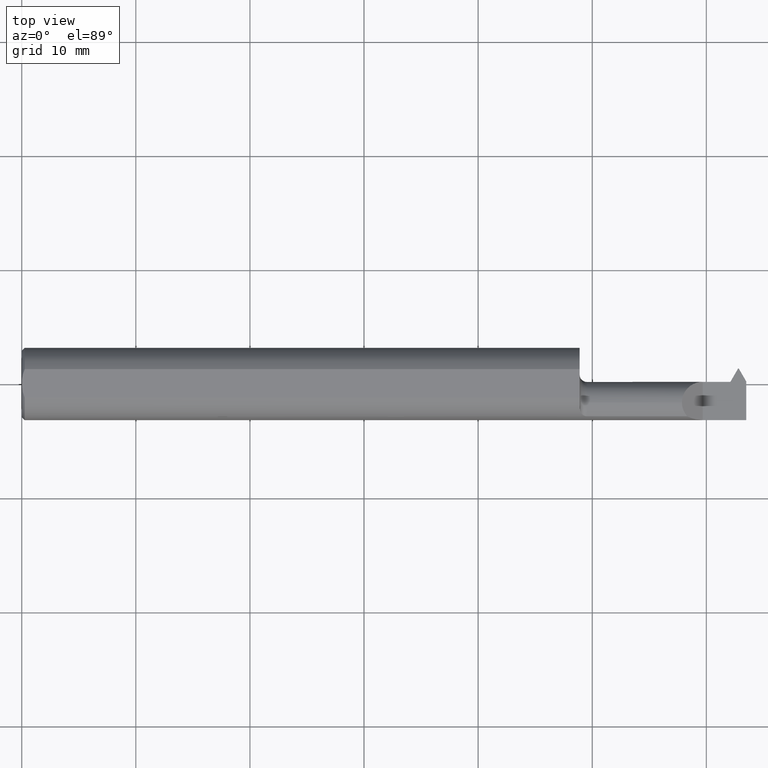
[diagram: clean part render]
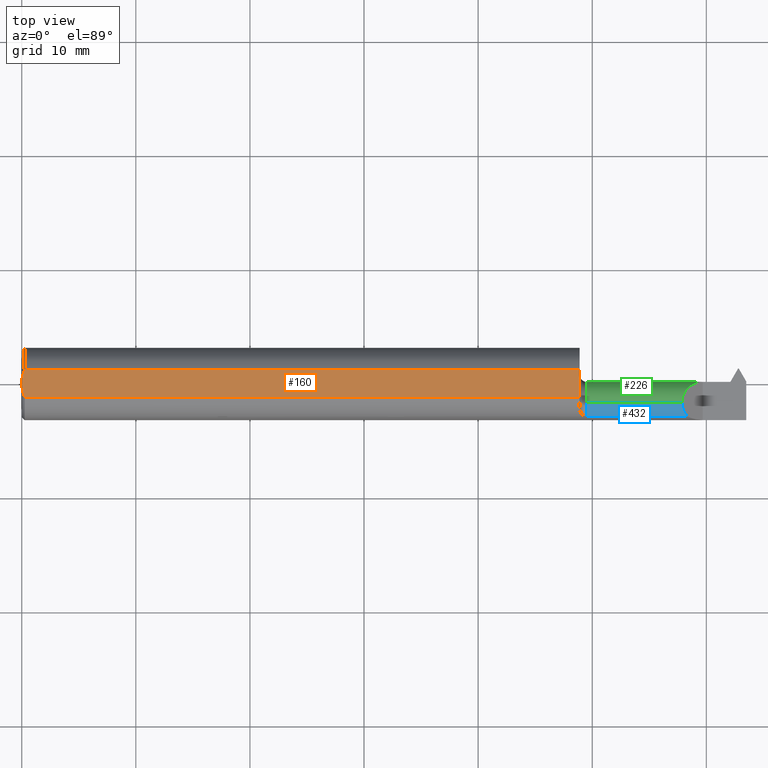
[diagram: same view with three faces highlighted in distinct colors, each labeled with its STEP entity id]
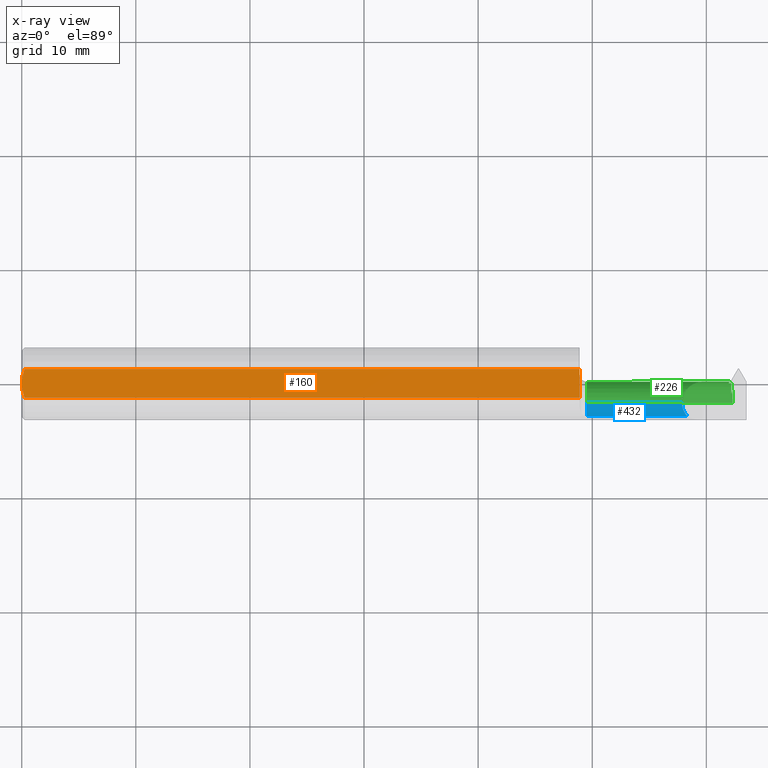
[diagram: x-ray of the same camera — body ghosted, the three highlighted faces saturated]
A machine part, top view with three faces highlighted in distinct colors.
The next image is the same camera in x-ray (body ghosted, the three faces saturated) — at least one of them is partly hidden behind the body in this view.
Their STEP definitions:

[orange] entity #160 — the highlighted planar face has unit normal (0, 0, 1).
#7 = DIRECTION ( 'NONE',  ( 1.000000000000000000, 0.000000000000000000, 0.000000000000000000 ) ) ;
#18 = CARTESIAN_POINT ( 'NONE',  ( 1.925000000000000044, 0.1248500000000000026, 0.1148499999999999521 ) ) ;
#30 = VERTEX_POINT ( 'NONE', #571 ) ;
#44 = ORIENTED_EDGE ( 'NONE', *, *, #622, .T. ) ;
#47 = CARTESIAN_POINT ( 'NONE',  ( -8.474402044719765530E-17, 0.01683325733139112365, 0.1148499999999999521 ) ) ;
#99 = VERTEX_POINT ( 'NONE', #720 ) ;
#101 = CARTESIAN_POINT ( 'NONE',  ( 0.004414493321357296045, -0.03313351293251454166, 0.1148499999999999660 ) ) ;
#104 = CARTESIAN_POINT ( 'NONE',  ( 0.000000000000000000, 0.000000000000000000, 0.1148499999999999521 ) ) ;
#120 = EDGE_CURVE ( 'NONE', #99, #30, #751, .T. ) ;
#121 = DIRECTION ( 'NONE',  ( -1.000000000000000000, -0.000000000000000000, -0.000000000000000000 ) ) ;
#158 = CARTESIAN_POINT ( 'NONE',  ( 1.925000000000000044, 0.04895916665957469188, 0.1148499999999999521 ) ) ;
#160 = ADVANCED_FACE ( 'NONE', ( #653 ), #657, .T. ) ;
#165 = ORIENTED_EDGE ( 'NONE', *, *, #386, .T. ) ;
#171 = CARTESIAN_POINT ( 'NONE',  ( -7.933430635897561254E-17, -0.008414813278457880172, 0.1148499999999999660 ) ) ;
#175 = DIRECTION ( 'NONE',  ( 1.000000000000000000, 0.000000000000000000, -0.000000000000000000 ) ) ;
#181 = VERTEX_POINT ( 'NONE', #321 ) ;
#200 = ORIENTED_EDGE ( 'NONE', *, *, #304, .F. ) ;
#219 = CARTESIAN_POINT ( 'NONE',  ( 0.000000000000000000, -0.04895916665957469188, 0.1148499999999999521 ) ) ;
#240 = CARTESIAN_POINT ( 'NONE',  ( 0.0009329797661891488150, -0.01671851415607274530, 0.1148499999999999244 ) ) ;
#260 = VERTEX_POINT ( 'NONE', #534 ) ;
#268 = AXIS2_PLACEMENT_3D ( 'NONE', #589, #448, #175 ) ;
#269 = VECTOR ( 'NONE', #7, 39.37007874015748143 ) ;
#275 = DIRECTION ( 'NONE',  ( 0.000000000000000000, 1.000000000000000000, 0.000000000000000000 ) ) ;
#304 = EDGE_CURVE ( 'NONE', #30, #181, #858, .T. ) ;
#321 = CARTESIAN_POINT ( 'NONE',  ( 0.01000000000000014939, 0.04895916665957469188, 0.1148499999999999521 ) ) ;
#325 = CARTESIAN_POINT ( 'NONE',  ( 0.000000000000000000, 0.04895916665957469188, 0.1148499999999999521 ) ) ;
#326 = CARTESIAN_POINT ( 'NONE',  ( 0.01000000000000014939, 0.04895916665957469188, 0.1148499999999999521 ) ) ;
#342 = VECTOR ( 'NONE', #121, 39.37007874015748143 ) ;
#386 = EDGE_CURVE ( 'NONE', #260, #561, #549, .T. ) ;
#446 = ORIENTED_EDGE ( 'NONE', *, *, #450, .T. ) ;
#448 = DIRECTION ( 'NONE',  ( 0.000000000000000000, 0.000000000000000000, 1.000000000000000000 ) ) ;
#450 = EDGE_CURVE ( 'NONE', #99, #260, #629, .T. ) ;
#510 = CARTESIAN_POINT ( 'NONE',  ( 0.01000000000000014939, -0.04895916665957469188, 0.1148499999999999521 ) ) ;
#534 = CARTESIAN_POINT ( 'NONE',  ( 1.925000000000000044, -0.04895916665957478209, 0.1148499999999999521 ) ) ;
#537 = LINE ( 'NONE', #325, #342 ) ;
#549 = LINE ( 'NONE', #18, #732 ) ;
#561 = VERTEX_POINT ( 'NONE', #158 ) ;
#571 = CARTESIAN_POINT ( 'NONE',  ( 0.000000000000000000, 0.000000000000000000, 0.1148499999999999521 ) ) ;
#589 = CARTESIAN_POINT ( 'NONE',  ( 2.752883550275615487, 0.1248500000000000026, 0.1148499999999999521 ) ) ;
#622 = EDGE_CURVE ( 'NONE', #561, #181, #537, .T. ) ;
#629 = LINE ( 'NONE', #219, #269 ) ;
#653 = FACE_OUTER_BOUND ( 'NONE', #782, .T. ) ;
#657 = PLANE ( 'NONE',  #268 ) ;
#671 = CARTESIAN_POINT ( 'NONE',  ( 0.000000000000000000, 0.000000000000000000, 0.1148499999999999521 ) ) ;
#707 = ORIENTED_EDGE ( 'NONE', *, *, #120, .F. ) ;
#720 = CARTESIAN_POINT ( 'NONE',  ( 0.01000000000000014939, -0.04895916665957469188, 0.1148499999999999521 ) ) ;
#732 = VECTOR ( 'NONE', #275, 39.37007874015748143 ) ;
#751 = B_SPLINE_CURVE_WITH_KNOTS ( 'NONE', 3,
 ( #510, #870, #101, #240, #171, #104 ),
 .UNSPECIFIED., .F., .F.,
 ( 4, 2, 4 ),
 ( 0.001059891666211653424, 0.001694300407100094883, 0.002328709147988536343 ),
 .UNSPECIFIED. ) ;
#782 = EDGE_LOOP ( 'NONE', ( #446, #165, #44, #200, #707 ) ) ;
#818 = CARTESIAN_POINT ( 'NONE',  ( 0.003881058084116530311, 0.03335534922718986356, 0.1148499999999999521 ) ) ;
#858 = B_SPLINE_CURVE_WITH_KNOTS ( 'NONE', 3,
 ( #671, #47, #818, #326 ),
 .UNSPECIFIED., .F., .F.,
 ( 4, 4 ),
 ( 0.002328709147988536343, 0.003597800360742826626 ),
 .UNSPECIFIED. ) ;
#870 = CARTESIAN_POINT ( 'NONE',  ( 0.006957100361671281381, -0.04119951620459590125, 0.1148499999999999521 ) ) ;

[blue] entity #432 — the highlighted cylindrical surface (edge-blend (fillet) strip) has radius 1.8288 mm, axis along (-1, -0, -0).
#9 = AXIS2_PLACEMENT_3D ( 'NONE', #254, #538, #811 ) ;
#13 = DIRECTION ( 'NONE',  ( 0.000000000000000000, 0.000000000000000000, 1.000000000000000000 ) ) ;
#17 =( BOUNDED_CURVE ( )  B_SPLINE_CURVE ( 3, ( #490, #336, #409, #62 ),
 .UNSPECIFIED., .F., .T. ) 
 B_SPLINE_CURVE_WITH_KNOTS ( ( 4, 4 ),
 ( 5.557415925277291002, 6.283185307179586232 ),
 .UNSPECIFIED. ) 
 CURVE ( )  GEOMETRIC_REPRESENTATION_ITEM ( )  RATIONAL_B_SPLINE_CURVE ( ( 1.000000000000000000, 0.9565844858609652279, 0.9565844858609652279, 1.000000000000000000 ) ) 
 REPRESENTATION_ITEM ( '' )  );
#62 = CARTESIAN_POINT ( 'NONE',  ( 2.277999999999999137, -0.06485000000000003262, 0.07200000000000005007 ) ) ;
#91 = CARTESIAN_POINT ( 'NONE',  ( 2.197229416990599926, -0.1126372012336159523, 0.05385520771715492788 ) ) ;
#93 = VECTOR ( 'NONE', #644, 39.37007874015748143 ) ;
#112 = VERTEX_POINT ( 'NONE', #649 ) ;
#138 = EDGE_CURVE ( 'NONE', #865, #112, #366, .T. ) ;
#152 = AXIS2_PLACEMENT_3D ( 'NONE', #692, #829, #13 ) ;
#155 = VERTEX_POINT ( 'NONE', #159 ) ;
#159 = CARTESIAN_POINT ( 'NONE',  ( 2.277999999999999137, -0.06485000000000003262, 0.07200000000000005007 ) ) ;
#254 = CARTESIAN_POINT ( 'NONE',  ( 1.949999999999999956, -0.06485000000000003262, 0.000000000000000000 ) ) ;
#282 = CARTESIAN_POINT ( 'NONE',  ( 1.925000000000000044, -0.06485000000000003262, 0.07200000000000005007 ) ) ;
#286 = EDGE_CURVE ( 'NONE', #865, #411, #468, .T. ) ;
#336 = CARTESIAN_POINT ( 'NONE',  ( 2.284322770422977822, -0.09931402208806684728, 0.06567722957702165631 ) ) ;
#362 = EDGE_LOOP ( 'NONE', ( #408, #398, #543, #650 ) ) ;
#366 = LINE ( 'NONE', #91, #93 ) ;
#398 = ORIENTED_EDGE ( 'NONE', *, *, #827, .T. ) ;
#408 = ORIENTED_EDGE ( 'NONE', *, *, #871, .T. ) ;
#409 = CARTESIAN_POINT ( 'NONE',  ( 2.277999999999999581, -0.08266199886030649313, 0.07200000000000005007 ) ) ;
#410 = CYLINDRICAL_SURFACE ( 'NONE', #152, 0.07200000000000005007 ) ;
#411 = VERTEX_POINT ( 'NONE', #624 ) ;
#424 = LINE ( 'NONE', #282, #691 ) ;
#432 = ADVANCED_FACE ( 'NONE', ( #832 ), #410, .T. ) ;
#468 = CIRCLE ( 'NONE', #9, 0.07200000000000005007 ) ;
#490 = CARTESIAN_POINT ( 'NONE',  ( 2.296144792282844627, -0.1126372012336159245, 0.05385520771715499033 ) ) ;
#538 = DIRECTION ( 'NONE',  ( -1.000000000000000000, -0.000000000000000000, -0.000000000000000000 ) ) ;
#543 = ORIENTED_EDGE ( 'NONE', *, *, #286, .F. ) ;
#624 = CARTESIAN_POINT ( 'NONE',  ( 1.949999999999999956, -0.06485000000000003262, 0.07200000000000005007 ) ) ;
#644 = DIRECTION ( 'NONE',  ( 1.000000000000000000, 0.000000000000000000, 0.000000000000000000 ) ) ;
#649 = CARTESIAN_POINT ( 'NONE',  ( 2.296144792282844627, -0.1126372012336159245, 0.05385520771715499033 ) ) ;
#650 = ORIENTED_EDGE ( 'NONE', *, *, #138, .T. ) ;
#691 = VECTOR ( 'NONE', #842, 39.37007874015748143 ) ;
#692 = CARTESIAN_POINT ( 'NONE',  ( 1.925000000000000044, -0.06485000000000003262, 0.000000000000000000 ) ) ;
#773 = CARTESIAN_POINT ( 'NONE',  ( 1.949999999999999956, -0.1126372012336159106, 0.05385520771715496258 ) ) ;
#811 = DIRECTION ( 'NONE',  ( 0.000000000000000000, 0.000000000000000000, 1.000000000000000000 ) ) ;
#827 = EDGE_CURVE ( 'NONE', #155, #411, #424, .T. ) ;
#829 = DIRECTION ( 'NONE',  ( -1.000000000000000000, -0.000000000000000000, -0.000000000000000000 ) ) ;
#832 = FACE_OUTER_BOUND ( 'NONE', #362, .T. ) ;
#842 = DIRECTION ( 'NONE',  ( -1.000000000000000000, -0.000000000000000000, -0.000000000000000000 ) ) ;
#865 = VERTEX_POINT ( 'NONE', #773 ) ;
#871 = EDGE_CURVE ( 'NONE', #112, #155, #17, .T. ) ;

[green] entity #226 — the highlighted cylindrical surface (edge-blend (fillet) strip) has radius 1.8288 mm, axis along (-1, -0, -0).
#1 = CARTESIAN_POINT ( 'NONE',  ( 2.448245960510600838, -0.03242552803665108702, -0.06428571861539707222 ) ) ;
#29 = EDGE_CURVE ( 'NONE', #411, #696, #167, .T. ) ;
#39 = CARTESIAN_POINT ( 'NONE',  ( 2.448377569033441947, 0.0002070817503828659698, -0.03104149022359889085 ) ) ;
#46 = CARTESIAN_POINT ( 'NONE',  ( 2.277999999999999137, -0.06485000000000003262, 0.07200000000000005007 ) ) ;
#52 = DIRECTION ( 'NONE',  ( -1.000000000000000000, -0.000000000000000000, -0.000000000000000000 ) ) ;
#81 = CARTESIAN_POINT ( 'NONE',  ( 2.448707345675358749, -0.001433052293470402257, -0.03409238541943496875 ) ) ;
#94 = EDGE_CURVE ( 'NONE', #594, #696, #799, .T. ) ;
#97 = CARTESIAN_POINT ( 'NONE',  ( 2.448040809951406160, 0.001623174844357845809, -0.02788036992740975870 ) ) ;
#115 = VERTEX_POINT ( 'NONE', #729 ) ;
#117 = CARTESIAN_POINT ( 'NONE',  ( 2.453554108141144052, -0.06485000000000003262, -0.07200000000000009170 ) ) ;
#124 = CARTESIAN_POINT ( 'NONE',  ( 2.451025827834819815, -0.01798175266187929111, -0.05465681468447253916 ) ) ;
#127 = CARTESIAN_POINT ( 'NONE',  ( 2.453251568588369125, -0.04747189856251215340, -0.07200000000000005007 ) ) ;
#128 = VERTEX_POINT ( 'NONE', #517 ) ;
#131 = CARTESIAN_POINT ( 'NONE',  ( 2.448245960510600838, -0.0005642813846027860611, -0.03242447196334860560 ) ) ;
#144 = CARTESIAN_POINT ( 'NONE',  ( 2.449731527510602636, -0.02723388756618700182, -0.06166715566698454526 ) ) ;
#153 = LINE ( 'NONE', #652, #779 ) ;
#155 = VERTEX_POINT ( 'NONE', #159 ) ;
#157 = EDGE_CURVE ( 'NONE', #394, #428, #541, .T. ) ;
#159 = CARTESIAN_POINT ( 'NONE',  ( 2.277999999999999137, -0.06485000000000003262, 0.07200000000000005007 ) ) ;
#167 = CIRCLE ( 'NONE', #328, 0.07200000000000005007 ) ;
#186 = EDGE_CURVE ( 'NONE', #594, #115, #552, .T. ) ;
#205 = ORIENTED_EDGE ( 'NONE', *, *, #186, .F. ) ;
#213 = CARTESIAN_POINT ( 'NONE',  ( 2.450662676990365441, -0.02239577395952108835, -0.05844184026870891113 ) ) ;
#226 = ADVANCED_FACE ( 'NONE', ( #546 ), #882, .T. ) ;
#242 = AXIS2_PLACEMENT_3D ( 'NONE', #683, #330, #397 ) ;
#253 = CARTESIAN_POINT ( 'NONE',  ( 2.453554108141144052, -0.06485000000000003262, -0.07200000000000009170 ) ) ;
#255 = VERTEX_POINT ( 'NONE', #605 ) ;
#270 = LINE ( 'NONE', #669, #719 ) ;
#271 = ORIENTED_EDGE ( 'NONE', *, *, #498, .F. ) ;
#273 = EDGE_CURVE ( 'NONE', #359, #255, #270, .T. ) ;
#277 = CARTESIAN_POINT ( 'NONE',  ( 2.451025827834819815, -0.01798175266187929111, -0.05465681468447253916 ) ) ;
#282 = CARTESIAN_POINT ( 'NONE',  ( 1.925000000000000044, -0.06485000000000003262, 0.07200000000000005007 ) ) ;
#284 = VECTOR ( 'NONE', #584, 39.37007874015748143 ) ;
#297 = ORIENTED_EDGE ( 'NONE', *, *, #94, .T. ) ;
#315 = ORIENTED_EDGE ( 'NONE', *, *, #827, .F. ) ;
#328 = AXIS2_PLACEMENT_3D ( 'NONE', #416, #348, #621 ) ;
#329 = CARTESIAN_POINT ( 'NONE',  ( 2.440511904668818843, 0.005687813634591465210, -0.01671286663300396852 ) ) ;
#330 = DIRECTION ( 'NONE',  ( -1.000000000000000000, -0.000000000000000000, -0.000000000000000000 ) ) ;
#348 = DIRECTION ( 'NONE',  ( -1.000000000000000000, -0.000000000000000000, -0.000000000000000000 ) ) ;
#359 = VERTEX_POINT ( 'NONE', #758 ) ;
#368 = CARTESIAN_POINT ( 'NONE',  ( 2.350000000000000089, 0.007150000000000000973, 7.041719095097276442E-17 ) ) ;
#369 = CARTESIAN_POINT ( 'NONE',  ( 2.448707345675358749, -0.001433052293470402257, -0.03409238541943496875 ) ) ;
#379 = CARTESIAN_POINT ( 'NONE',  ( 2.448559930955160446, -0.001136208938752845087, -0.03354021227955174961 ) ) ;
#388 = CARTESIAN_POINT ( 'NONE',  ( 1.949999999999999956, -0.06485000000000003262, -0.07200000000000005007 ) ) ;
#394 = VERTEX_POINT ( 'NONE', #81 ) ;
#397 = DIRECTION ( 'NONE',  ( 0.000000000000000000, 0.000000000000000000, 1.000000000000000000 ) ) ;
#405 = CARTESIAN_POINT ( 'NONE',  ( 2.443458833981199785, 0.007149999999999992299, 0.000000000000000000 ) ) ;
#406 = CARTESIAN_POINT ( 'NONE',  ( 2.452372380346347747, -0.03117385918738972347, -0.06596905296834923438 ) ) ;
#411 = VERTEX_POINT ( 'NONE', #624 ) ;
#416 = CARTESIAN_POINT ( 'NONE',  ( 1.949999999999999956, -0.06485000000000003262, 0.000000000000000000 ) ) ;
#424 = LINE ( 'NONE', #282, #691 ) ;
#428 = VERTEX_POINT ( 'NONE', #131 ) ;
#431 = DIRECTION ( 'NONE',  ( 1.000000000000000000, 0.000000000000000000, 0.000000000000000000 ) ) ;
#451 =( BOUNDED_CURVE ( )  B_SPLINE_CURVE ( 3, ( #1, #144, #213, #277 ),
 .UNSPECIFIED., .F., .T. ) 
 B_SPLINE_CURVE_WITH_KNOTS ( ( 4, 4 ),
 ( 2.823340467669869458, 3.065026911425940970 ),
 .UNSPECIFIED. ) 
 CURVE ( )  GEOMETRIC_REPRESENTATION_ITEM ( )  RATIONAL_B_SPLINE_CURVE ( ( 1.000000000000000000, 0.9951382259724272927, 0.9951382259724272927, 1.000000000000000000 ) ) 
 REPRESENTATION_ITEM ( '' )  );
#467 = VERTEX_POINT ( 'NONE', #368 ) ;
#470 = EDGE_CURVE ( 'NONE', #428, #550, #575, .T. ) ;
#498 = EDGE_CURVE ( 'NONE', #394, #359, #869, .T. ) ;
#511 = EDGE_CURVE ( 'NONE', #467, #128, #153, .T. ) ;
#513 =( BOUNDED_CURVE ( )  B_SPLINE_CURVE ( 3, ( #745, #329, #738, #405 ),
 .UNSPECIFIED., .F., .T. ) 
 B_SPLINE_CURVE_WITH_KNOTS ( ( 4, 4 ),
 ( 1.221730476396027054, 1.570796326794896780 ),
 .UNSPECIFIED. ) 
 CURVE ( )  GEOMETRIC_REPRESENTATION_ITEM ( )  RATIONAL_B_SPLINE_CURVE ( ( 1.000000000000000000, 0.9898718353414717175, 0.9898718353414717175, 1.000000000000000000 ) ) 
 REPRESENTATION_ITEM ( '' )  );
#517 = CARTESIAN_POINT ( 'NONE',  ( 2.443458833981199785, 0.007149999999999992299, 0.000000000000000000 ) ) ;
#520 = CARTESIAN_POINT ( 'NONE',  ( 2.448406127155693834, -0.0008466021701428430753, -0.03298420951586814726 ) ) ;
#539 = ORIENTED_EDGE ( 'NONE', *, *, #636, .T. ) ;
#541 =( BOUNDED_CURVE ( )  B_SPLINE_CURVE ( 3, ( #369, #379, #520, #802 ),
 .UNSPECIFIED., .F., .T. ) 
 B_SPLINE_CURVE_WITH_KNOTS ( ( 4, 4 ),
 ( 3.433724498061509589, 3.459844839509716774 ),
 .UNSPECIFIED. ) 
 CURVE ( )  GEOMETRIC_REPRESENTATION_ITEM ( )  RATIONAL_B_SPLINE_CURVE ( ( 1.000000000000000000, 0.9999431447883662116, 0.9999431447883662116, 1.000000000000000000 ) ) 
 REPRESENTATION_ITEM ( '' )  );
#546 = FACE_OUTER_BOUND ( 'NONE', #803, .T. ) ;
#550 = VERTEX_POINT ( 'NONE', #785 ) ;
#552 =( BOUNDED_CURVE ( )  B_SPLINE_CURVE ( 3, ( #117, #127, #406, #124 ),
 .UNSPECIFIED., .F., .T. ) 
 B_SPLINE_CURVE_WITH_KNOTS ( ( 4, 4 ),
 ( 3.316125578789226314, 4.024958000022824223 ),
 .UNSPECIFIED. ) 
 CURVE ( )  GEOMETRIC_REPRESENTATION_ITEM ( )  RATIONAL_B_SPLINE_CURVE ( ( 1.000000000000000000, 0.9585661657287231074, 0.9585661657287231074, 1.000000000000000000 ) ) 
 REPRESENTATION_ITEM ( '' )  );
#575 = CIRCLE ( 'NONE', #797, 0.07200000000000005007 ) ;
#584 = DIRECTION ( 'NONE',  ( -1.000000000000000000, -0.000000000000000000, -0.000000000000000000 ) ) ;
#587 = CARTESIAN_POINT ( 'NONE',  ( 2.448245960510600838, -0.06485000000000003262, 0.000000000000000000 ) ) ;
#594 = VERTEX_POINT ( 'NONE', #253 ) ;
#599 = CARTESIAN_POINT ( 'NONE',  ( 2.277999999999999137, -0.02267337649086286280, 0.07200000000000003619 ) ) ;
#602 = EDGE_CURVE ( 'NONE', #255, #128, #513, .T. ) ;
#605 = CARTESIAN_POINT ( 'NONE',  ( 2.439116702677785131, 0.002807868696585315293, -0.02462545031944843310 ) ) ;
#621 = DIRECTION ( 'NONE',  ( 0.000000000000000000, 0.000000000000000000, 1.000000000000000000 ) ) ;
#624 = CARTESIAN_POINT ( 'NONE',  ( 1.949999999999999956, -0.06485000000000003262, 0.07200000000000005007 ) ) ;
#626 = ORIENTED_EDGE ( 'NONE', *, *, #602, .F. ) ;
#636 = EDGE_CURVE ( 'NONE', #155, #467, #647, .T. ) ;
#647 =( BOUNDED_CURVE ( )  B_SPLINE_CURVE ( 3, ( #46, #599, #885, #878 ),
 .UNSPECIFIED., .F., .F. ) 
 B_SPLINE_CURVE_WITH_KNOTS ( ( 4, 4 ),
 ( 0.000000000000000000, 1.570796326794896114 ),
 .UNSPECIFIED. ) 
 CURVE ( )  GEOMETRIC_REPRESENTATION_ITEM ( )  RATIONAL_B_SPLINE_CURVE ( ( 1.000000000000000000, 0.8047378541243650485, 0.8047378541243650485, 1.000000000000000000 ) ) 
 REPRESENTATION_ITEM ( '' )  );
#648 = DIRECTION ( 'NONE',  ( -1.000000000000000000, -0.000000000000000000, -0.000000000000000000 ) ) ;
#652 = CARTESIAN_POINT ( 'NONE',  ( 1.925000000000000044, 0.007150000000000000973, 7.041719095097276442E-17 ) ) ;
#669 = CARTESIAN_POINT ( 'NONE',  ( 1.924999999999999822, 0.002807868696580402123, -0.02462545031946194660 ) ) ;
#683 = CARTESIAN_POINT ( 'NONE',  ( 1.925000000000000044, -0.06485000000000003262, 0.000000000000000000 ) ) ;
#691 = VECTOR ( 'NONE', #842, 39.37007874015748143 ) ;
#696 = VERTEX_POINT ( 'NONE', #388 ) ;
#718 = CARTESIAN_POINT ( 'NONE',  ( 2.447698818294161249, 0.002807868696573678335, -0.02462545031944628898 ) ) ;
#719 = VECTOR ( 'NONE', #52, 39.37007874015748143 ) ;
#727 = CARTESIAN_POINT ( 'NONE',  ( 2.448707345675358749, -0.001433052293470402257, -0.03409238541943496875 ) ) ;
#729 = CARTESIAN_POINT ( 'NONE',  ( 2.451025827834819815, -0.01798175266187929111, -0.05465681468447253916 ) ) ;
#738 = CARTESIAN_POINT ( 'NONE',  ( 2.441974091034227357, 0.007150000000000010514, -0.008420395681969689711 ) ) ;
#745 = CARTESIAN_POINT ( 'NONE',  ( 2.439116702677785131, 0.002807868696585315293, -0.02462545031944843310 ) ) ;
#758 = CARTESIAN_POINT ( 'NONE',  ( 2.447698818294161249, 0.002807868696573678335, -0.02462545031944628898 ) ) ;
#772 = ORIENTED_EDGE ( 'NONE', *, *, #856, .T. ) ;
#779 = VECTOR ( 'NONE', #431, 39.37007874015748143 ) ;
#785 = CARTESIAN_POINT ( 'NONE',  ( 2.448245960510600838, -0.03242552803665108702, -0.06428571861539707222 ) ) ;
#796 = DIRECTION ( 'NONE',  ( 0.000000000000000000, 3.557093741750340058E-15, -1.000000000000000000 ) ) ;
#797 = AXIS2_PLACEMENT_3D ( 'NONE', #587, #648, #796 ) ;
#799 = LINE ( 'NONE', #876, #284 ) ;
#802 = CARTESIAN_POINT ( 'NONE',  ( 2.448245960510600838, -0.0005642813846027860611, -0.03242447196334860560 ) ) ;
#803 = EDGE_LOOP ( 'NONE', ( #205, #297, #816, #315, #539, #872, #626, #861, #271, #896, #834, #772 ) ) ;
#816 = ORIENTED_EDGE ( 'NONE', *, *, #29, .F. ) ;
#827 = EDGE_CURVE ( 'NONE', #155, #411, #424, .T. ) ;
#834 = ORIENTED_EDGE ( 'NONE', *, *, #470, .T. ) ;
#842 = DIRECTION ( 'NONE',  ( -1.000000000000000000, -0.000000000000000000, -0.000000000000000000 ) ) ;
#856 = EDGE_CURVE ( 'NONE', #550, #115, #451, .T. ) ;
#861 = ORIENTED_EDGE ( 'NONE', *, *, #273, .F. ) ;
#869 =( BOUNDED_CURVE ( )  B_SPLINE_CURVE ( 3, ( #727, #39, #97, #718 ),
 .UNSPECIFIED., .F., .T. ) 
 B_SPLINE_CURVE_WITH_KNOTS ( ( 4, 4 ),
 ( 4.393655586658393730, 4.537856055185224946 ),
 .UNSPECIFIED. ) 
 CURVE ( )  GEOMETRIC_REPRESENTATION_ITEM ( )  RATIONAL_B_SPLINE_CURVE ( ( 1.000000000000000000, 0.9982679359379270645, 0.9982679359379270645, 1.000000000000000000 ) ) 
 REPRESENTATION_ITEM ( '' )  );
#872 = ORIENTED_EDGE ( 'NONE', *, *, #511, .T. ) ;
#876 = CARTESIAN_POINT ( 'NONE',  ( 1.925000000000000044, -0.06485000000000003262, -0.07200000000000005007 ) ) ;
#878 = CARTESIAN_POINT ( 'NONE',  ( 2.350000000000000089, 0.007150000000000000973, 7.041719095097276442E-17 ) ) ;
#882 = CYLINDRICAL_SURFACE ( 'NONE', #242, 0.07200000000000005007 ) ;
#885 = CARTESIAN_POINT ( 'NONE',  ( 2.307823376490862000, 0.007149999999999987095, 0.04217662350913719410 ) ) ;
#896 = ORIENTED_EDGE ( 'NONE', *, *, #157, .T. ) ;